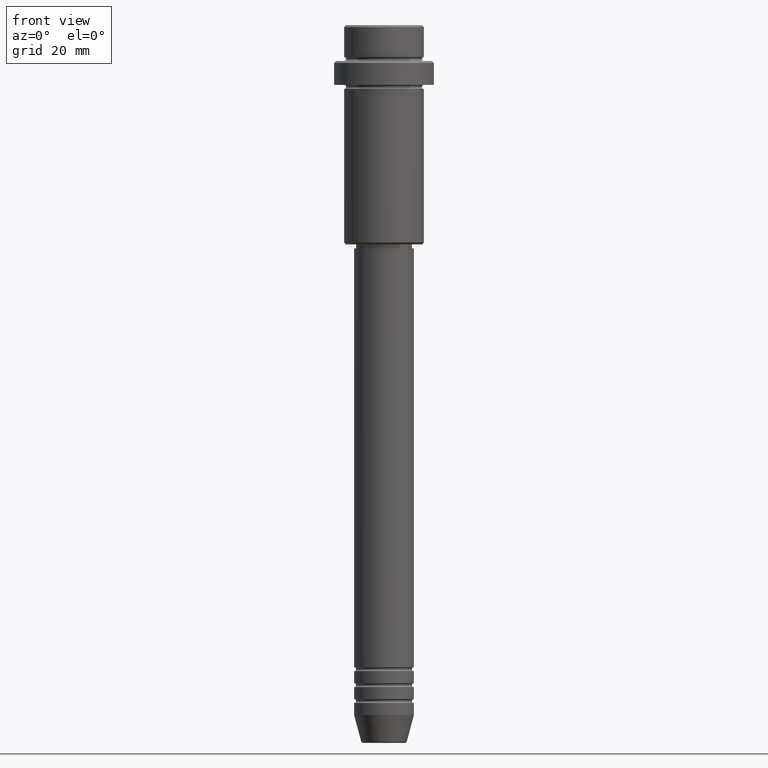
[diagram: clean part render]
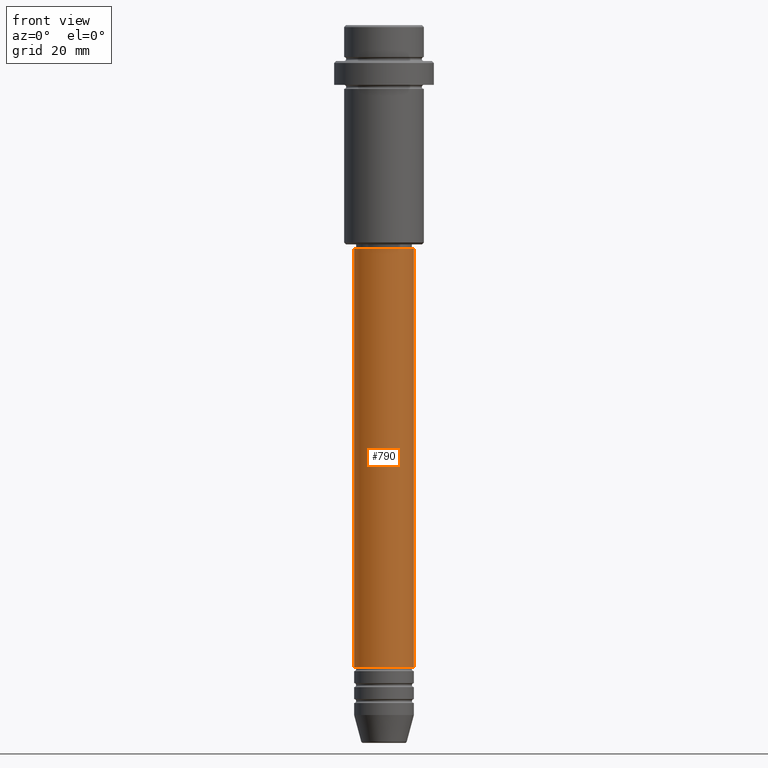
[diagram: same view with one face highlighted and labeled with its STEP entity id]
A machine part, front view. The second image highlights one B-rep face of the part: STEP entity #790.
In plain terms, the highlighted cylindrical surface (edge-blend (fillet) strip) has radius 7.5 mm, axis along (-0, -0, 1).
Its self-contained STEP definition (entity closure, byte-faithful):
#56 = CARTESIAN_POINT ( 'NONE',  ( 7.500000000000000000, 0.000000000000000000, -160.9999999999998579 ) ) ;
#76 = ORIENTED_EDGE ( 'NONE', *, *, #417, .T. ) ;
#109 = EDGE_LOOP ( 'NONE', ( #1184, #76, #1268, #1384 ) ) ;
#110 = LINE ( 'NONE', #981, #1124 ) ;
#117 = CIRCLE ( 'NONE', #184, 7.500000000000000000 ) ;
#129 = CYLINDRICAL_SURFACE ( 'NONE', #260, 7.500000000000000000 ) ;
#179 = DIRECTION ( 'NONE',  ( -0.000000000000000000, -0.000000000000000000, 1.000000000000000000 ) ) ;
#184 = AXIS2_PLACEMENT_3D ( 'NONE', #1133, #1237, #593 ) ;
#260 = AXIS2_PLACEMENT_3D ( 'NONE', #576, #562, #777 ) ;
#417 = EDGE_CURVE ( 'NONE', #1364, #1001, #117, .T. ) ;
#454 = FACE_OUTER_BOUND ( 'NONE', #109, .T. ) ;
#488 = CARTESIAN_POINT ( 'NONE',  ( -7.500000000000000000, 9.184850993605147944E-16, 0.000000000000000000 ) ) ;
#492 = DIRECTION ( 'NONE',  ( 1.000000000000000000, 0.000000000000000000, 0.000000000000000000 ) ) ;
#505 = CARTESIAN_POINT ( 'NONE',  ( -7.500000000000000000, 9.184850993605147944E-16, -55.99999999999999289 ) ) ;
#550 = EDGE_CURVE ( 'NONE', #1364, #1358, #1157, .T. ) ;
#562 = DIRECTION ( 'NONE',  ( -0.000000000000000000, -0.000000000000000000, 1.000000000000000000 ) ) ;
#564 = VERTEX_POINT ( 'NONE', #1145 ) ;
#576 = CARTESIAN_POINT ( 'NONE',  ( 0.000000000000000000, 0.000000000000000000, 0.000000000000000000 ) ) ;
#593 = DIRECTION ( 'NONE',  ( 1.000000000000000000, 0.000000000000000000, 0.000000000000000000 ) ) ;
#777 = DIRECTION ( 'NONE',  ( 1.000000000000000000, 0.000000000000000000, 0.000000000000000000 ) ) ;
#790 = ADVANCED_FACE ( 'NONE', ( #454 ), #129, .T. ) ;
#881 = VECTOR ( 'NONE', #1397, 1000.000000000000000 ) ;
#949 = CARTESIAN_POINT ( 'NONE',  ( 0.000000000000000000, 0.000000000000000000, -55.99999999999999289 ) ) ;
#981 = CARTESIAN_POINT ( 'NONE',  ( 7.500000000000000000, 0.000000000000000000, 0.000000000000000000 ) ) ;
#995 = EDGE_CURVE ( 'NONE', #1358, #564, #1064, .T. ) ;
#1001 = VERTEX_POINT ( 'NONE', #56 ) ;
#1064 = CIRCLE ( 'NONE', #1389, 7.500000000000000000 ) ;
#1124 = VECTOR ( 'NONE', #1315, 1000.000000000000000 ) ;
#1133 = CARTESIAN_POINT ( 'NONE',  ( 0.000000000000000000, 0.000000000000000000, -160.9999999999998579 ) ) ;
#1145 = CARTESIAN_POINT ( 'NONE',  ( 7.500000000000000000, 0.000000000000000000, -55.99999999999999289 ) ) ;
#1157 = LINE ( 'NONE', #488, #881 ) ;
#1184 = ORIENTED_EDGE ( 'NONE', *, *, #550, .F. ) ;
#1226 = EDGE_CURVE ( 'NONE', #1001, #564, #110, .T. ) ;
#1237 = DIRECTION ( 'NONE',  ( -0.000000000000000000, -0.000000000000000000, 1.000000000000000000 ) ) ;
#1249 = CARTESIAN_POINT ( 'NONE',  ( -7.500000000000000000, 9.184850993605147944E-16, -160.9999999999998579 ) ) ;
#1268 = ORIENTED_EDGE ( 'NONE', *, *, #1226, .T. ) ;
#1315 = DIRECTION ( 'NONE',  ( -0.000000000000000000, -0.000000000000000000, 1.000000000000000000 ) ) ;
#1358 = VERTEX_POINT ( 'NONE', #505 ) ;
#1364 = VERTEX_POINT ( 'NONE', #1249 ) ;
#1384 = ORIENTED_EDGE ( 'NONE', *, *, #995, .F. ) ;
#1389 = AXIS2_PLACEMENT_3D ( 'NONE', #949, #179, #492 ) ;
#1397 = DIRECTION ( 'NONE',  ( -0.000000000000000000, -0.000000000000000000, 1.000000000000000000 ) ) ;